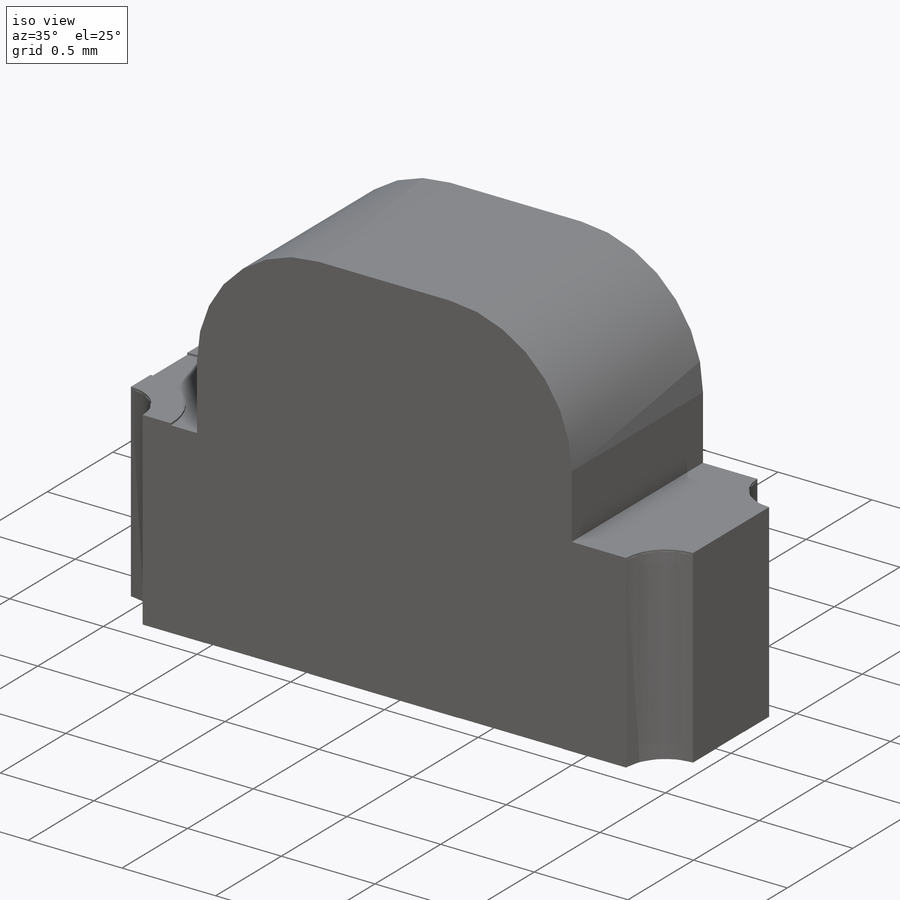
[diagram: iso view]
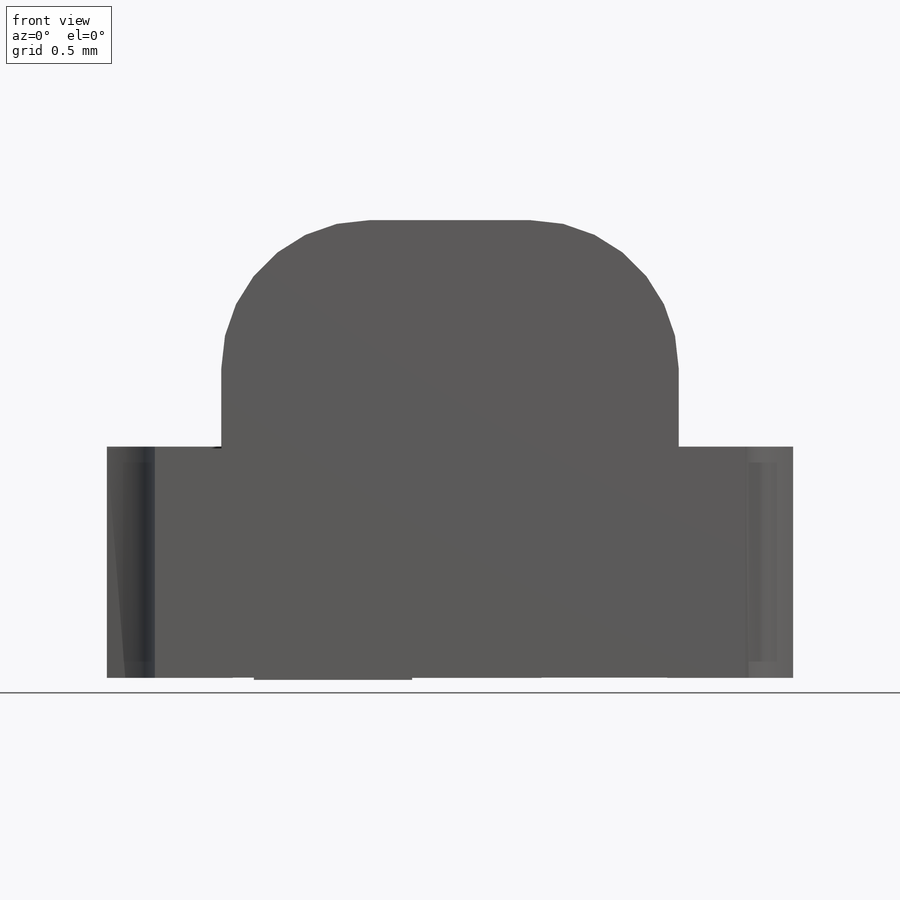
[diagram: front view]
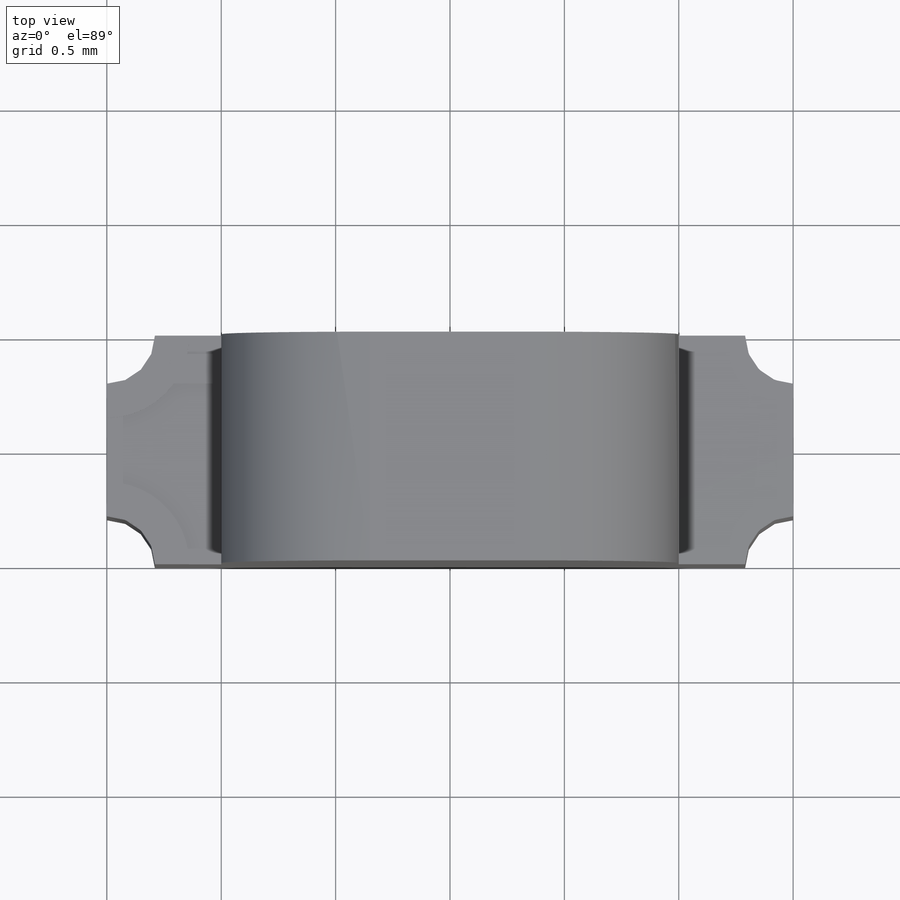
[diagram: top view]
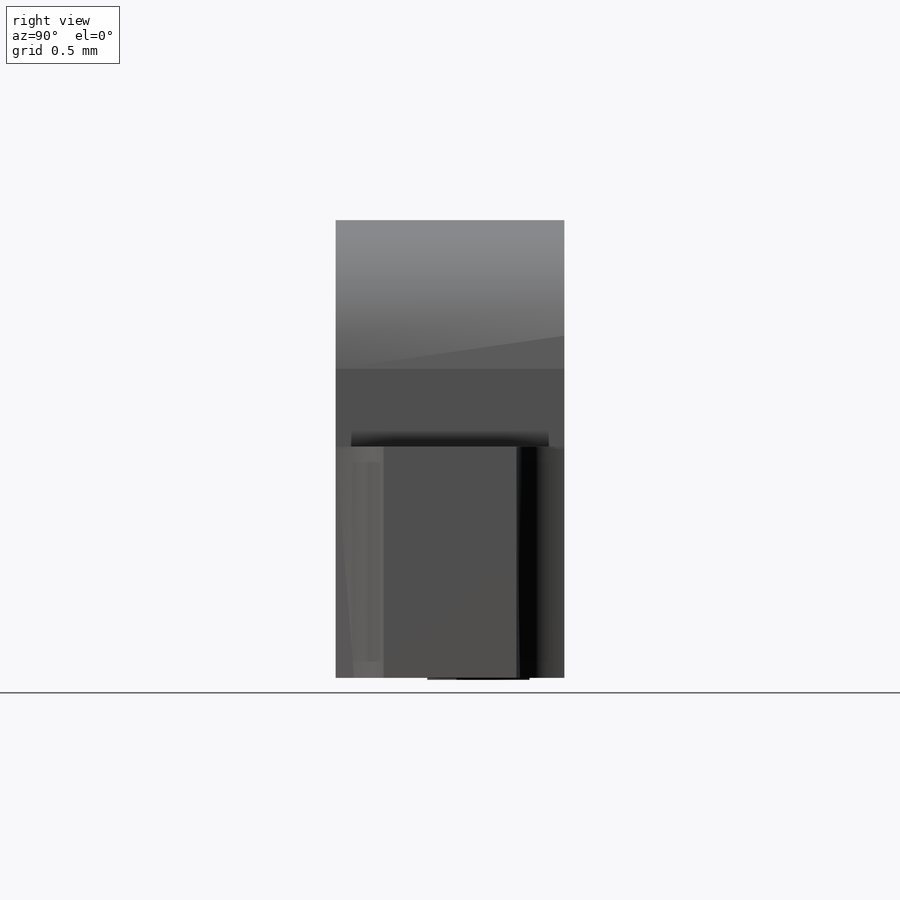
[diagram: right view]
SOLIDWORKS PART (.sldprt)
format: sldprt  version: not decoded by parser v0  size: 794,624 bytes
history: native  units: mm
features: sketch x7, extrude x5, cut_extrude x2, material x1 (+12 scaffold rows collapsed)
feature tree (27):
  scaffold x12  (default folders/planes/origin — collapsed)
  material  "Material <not specified>"
  sketch  "Sketch1"  dims[c1.D1=1.0mm c1.D2=3.0mm c1.D3=1.0mm c1.D4=0.35mm c1.D5=2.0mm c1.D6=0.03mm c1.D7=0.03mm c1.D8=0.03mm c1.D9=0.3mm c1.D10=0.25mm c2.D3=2.0mm]
  extrude  "Extrude1"  Depth=1mm
  sketch  "Sketch5"  dims[c1.D3=0.8mm c1.D4=0.3mm c1.D5=0.55mm c1.D6=0.2mm c1.D7=0.7mm c2.D4=0.58mm c2.D1=0.1mm c2.D2=0.1mm]
  extrude  "Extrude4"  Depth=0.02mm
  extrude  "Extrude5"  [1 undecoded]
  sketch  "Sketch5<3>"  dims[D1=0.03mm D2=0.01mm]
  extrude  "Extrude6"  [1 undecoded]
  sketch  "Sketch1<7>"  dims[D1=1.0mm]
  sketch  "Sketch6"  dims[D1=0.15mm]
  extrude  "Extrude7"  Depth=0.02mm
  cut_extrude  "Cut-Extrude1"  [1 undecoded]
  sketch  "Sketch5<5>"
  sketch  "Sketch7"
  cut_extrude  "Cut-Extrude2"  Depth=0.01mm
decode coverage: 9 of 14 modeling features carry decoded parameters
note: 3 parameter values undecoded
summary: no parameter record found for 3 features
note: suppression state not decoded; provenance and decode notes live in map.json
